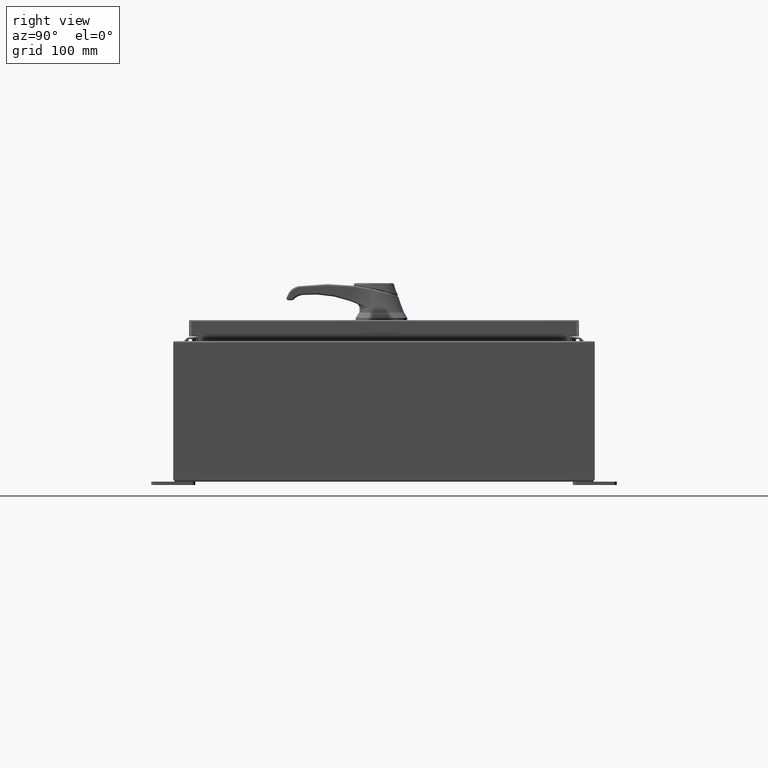
[diagram: clean part render]
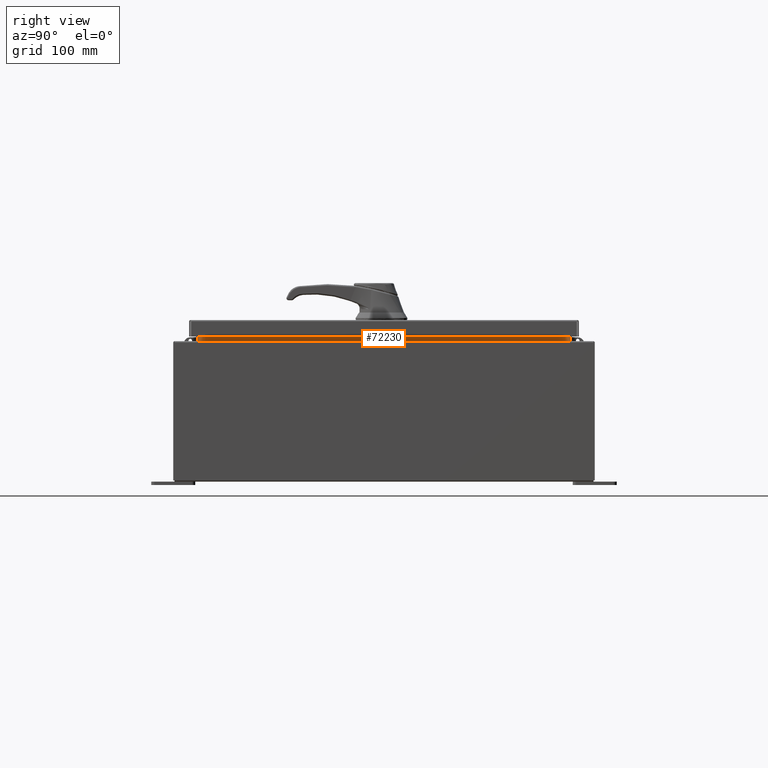
[diagram: same view with one face highlighted and labeled with its STEP entity id]
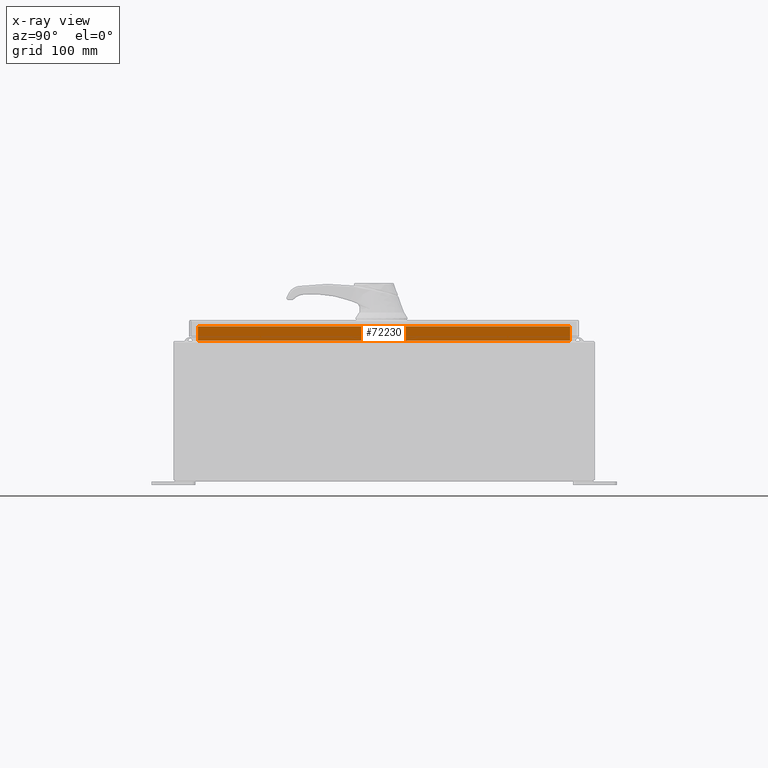
[diagram: x-ray of the same camera — body ghosted, the highlighted face saturated]
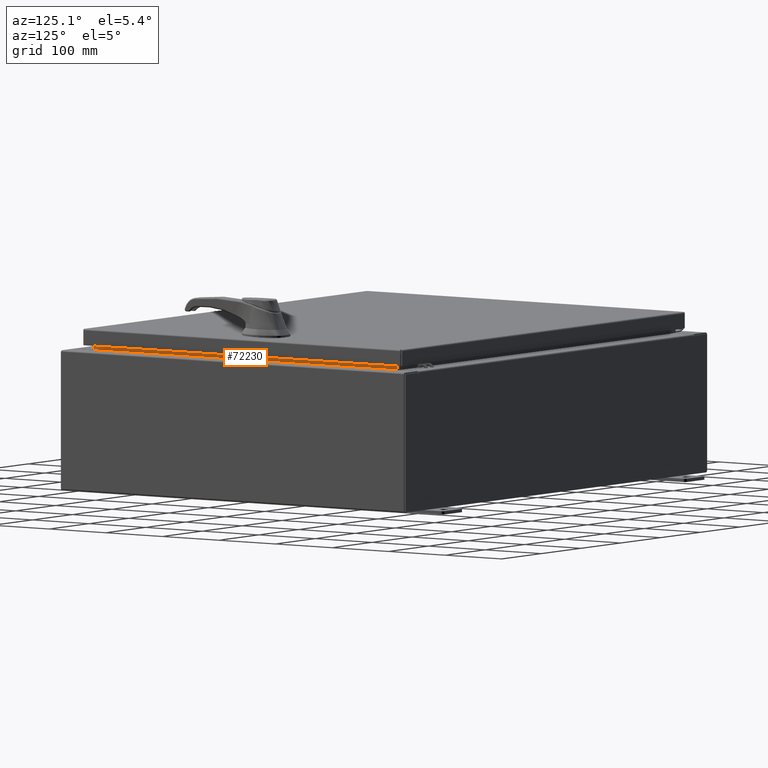
[diagram: same view with one face highlighted and labeled with its STEP entity id]
A machine part, right view. The second image highlights one B-rep face of the part: STEP entity #72230.
The next image is the same camera in x-ray: the body ghosted, the highlighted face saturated — about 0% of this face is hidden behind the body in this view.
A second angle (auxiliary view) of the same face is appended — the face is thin or edge-on in the first view.
In plain terms, the highlighted planar face has unit normal (1, -0, -0).
Its self-contained STEP definition (entity closure, byte-faithful):
#1036 = VECTOR ( 'NONE', #36147, 39.37007874015748100 ) ;
#1279 = CARTESIAN_POINT ( 'NONE',  ( 13.69970000000003400, -10.59375000000000000, 8.762900000000009000 ) ) ;
#1774 = DIRECTION ( 'NONE',  ( 0.0000000000000000000, -1.000000000000000000, 3.094482683088723800E-016 ) ) ;
#8443 = ORIENTED_EDGE ( 'NONE', *, *, #110358, .F. ) ;
#11528 = CARTESIAN_POINT ( 'NONE',  ( 13.69970000000003000, -10.59375000000000200, 7.938300000000011500 ) ) ;
#13888 = DIRECTION ( 'NONE',  ( 1.000000000000000000, -1.218149977913431200E-031, -2.361913319930196000E-015 ) ) ;
#14519 = ORIENTED_EDGE ( 'NONE', *, *, #32224, .F. ) ;
#14698 = LINE ( 'NONE', #105961, #58065 ) ;
#20221 = EDGE_LOOP ( 'NONE', ( #43634, #14519, #8443, #63403 ) ) ;
#26811 = DIRECTION ( 'NONE',  ( -2.361913319930196000E-015, -0.0000000000000000000, -1.000000000000000000 ) ) ;
#28916 = CARTESIAN_POINT ( 'NONE',  ( 13.69970000000003000, 10.59374999999999300, 7.938300000000011500 ) ) ;
#31354 = PLANE ( 'NONE',  #51197 ) ;
#32224 = EDGE_CURVE ( 'NONE', #96489, #109068, #72947, .T. ) ;
#34788 = VECTOR ( 'NONE', #26811, 39.37007874015748100 ) ;
#36147 = DIRECTION ( 'NONE',  ( 0.0000000000000000000, 1.000000000000000000, 0.0000000000000000000 ) ) ;
#40017 = DIRECTION ( 'NONE',  ( -2.361913319930196000E-015, 0.0000000000000000000, -1.000000000000000000 ) ) ;
#43634 = ORIENTED_EDGE ( 'NONE', *, *, #98188, .F. ) ;
#48803 = FACE_OUTER_BOUND ( 'NONE', #20221, .T. ) ;
#51170 = VECTOR ( 'NONE', #104020, 39.37007874015748100 ) ;
#51197 = AXIS2_PLACEMENT_3D ( 'NONE', #74540, #13888, #40017 ) ;
#57849 = LINE ( 'NONE', #95735, #34788 ) ;
#58065 = VECTOR ( 'NONE', #1774, 39.37007874015748100 ) ;
#63403 = ORIENTED_EDGE ( 'NONE', *, *, #74387, .F. ) ;
#72230 = ADVANCED_FACE ( 'NONE', ( #48803 ), #31354, .T. ) ;
#72947 = LINE ( 'NONE', #1279, #1036 ) ;
#74254 = LINE ( 'NONE', #95305, #51170 ) ;
#74387 = EDGE_CURVE ( 'NONE', #77048, #110625, #14698, .T. ) ;
#74540 = CARTESIAN_POINT ( 'NONE',  ( 13.69970000000001100, -1.668828925242064600E-030, -3.235750390904772800E-014 ) ) ;
#75760 = CARTESIAN_POINT ( 'NONE',  ( 13.69970000000003200, -10.59375000000000200, 8.762900000000009000 ) ) ;
#77048 = VERTEX_POINT ( 'NONE', #28916 ) ;
#92851 = CARTESIAN_POINT ( 'NONE',  ( 13.69970000000003400, 10.59374999999999600, 8.762900000000009000 ) ) ;
#95305 = CARTESIAN_POINT ( 'NONE',  ( 13.69970000000003200, -10.59375000000000200, 8.850600000000008900 ) ) ;
#95735 = CARTESIAN_POINT ( 'NONE',  ( 13.69970000000003000, 10.59374999999999600, 7.925300000000008900 ) ) ;
#96489 = VERTEX_POINT ( 'NONE', #75760 ) ;
#98188 = EDGE_CURVE ( 'NONE', #109068, #77048, #57849, .T. ) ;
#104020 = DIRECTION ( 'NONE',  ( 2.361913319930198800E-015, -0.0000000000000000000, 1.000000000000000000 ) ) ;
#105961 = CARTESIAN_POINT ( 'NONE',  ( 13.69970000000003000, 10.59374999999999600, 7.938300000000008800 ) ) ;
#109068 = VERTEX_POINT ( 'NONE', #92851 ) ;
#110358 = EDGE_CURVE ( 'NONE', #110625, #96489, #74254, .T. ) ;
#110625 = VERTEX_POINT ( 'NONE', #11528 ) ;